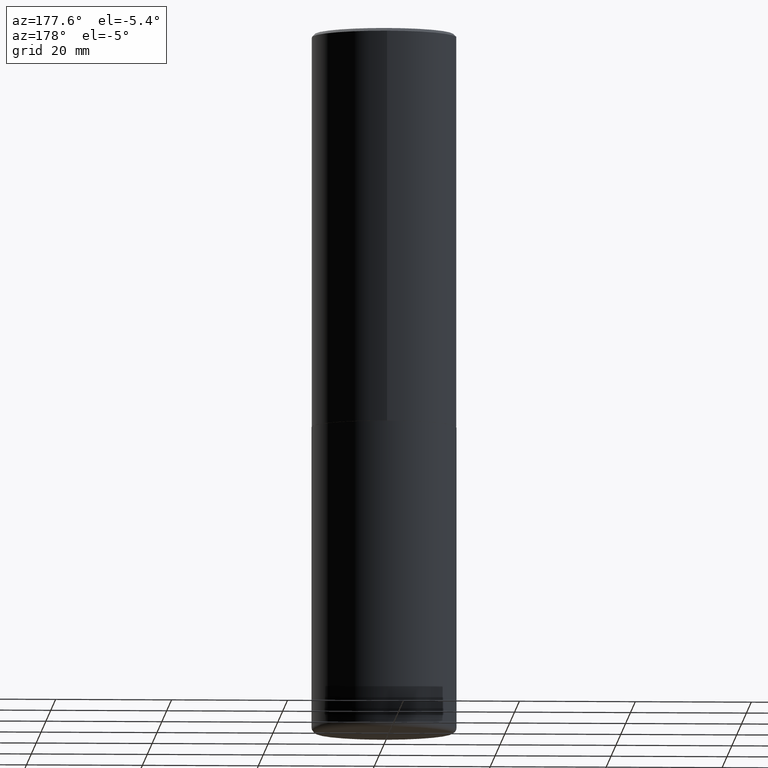
[diagram: clean part render]
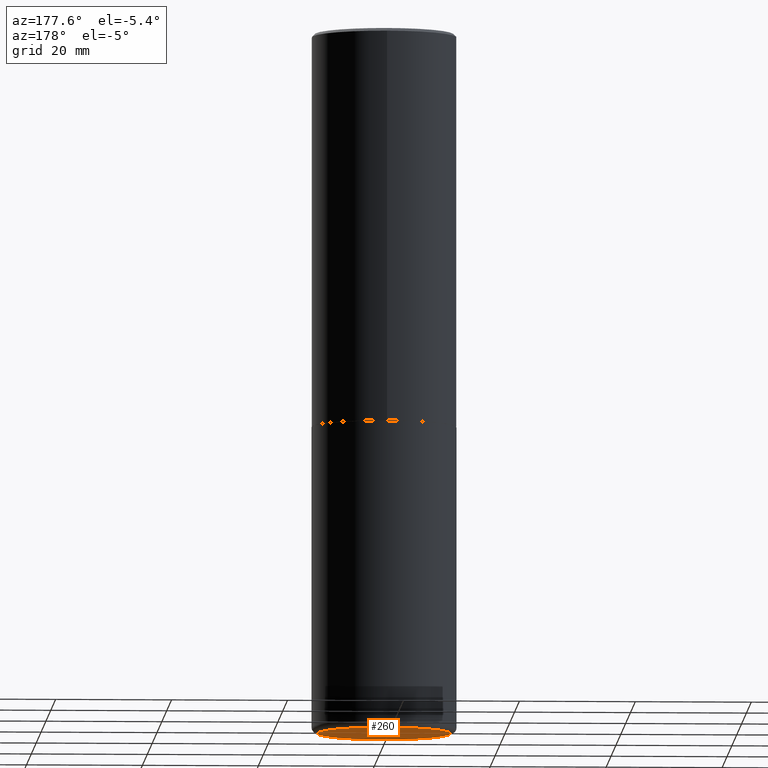
[diagram: same view with one face highlighted and labeled with its STEP entity id]
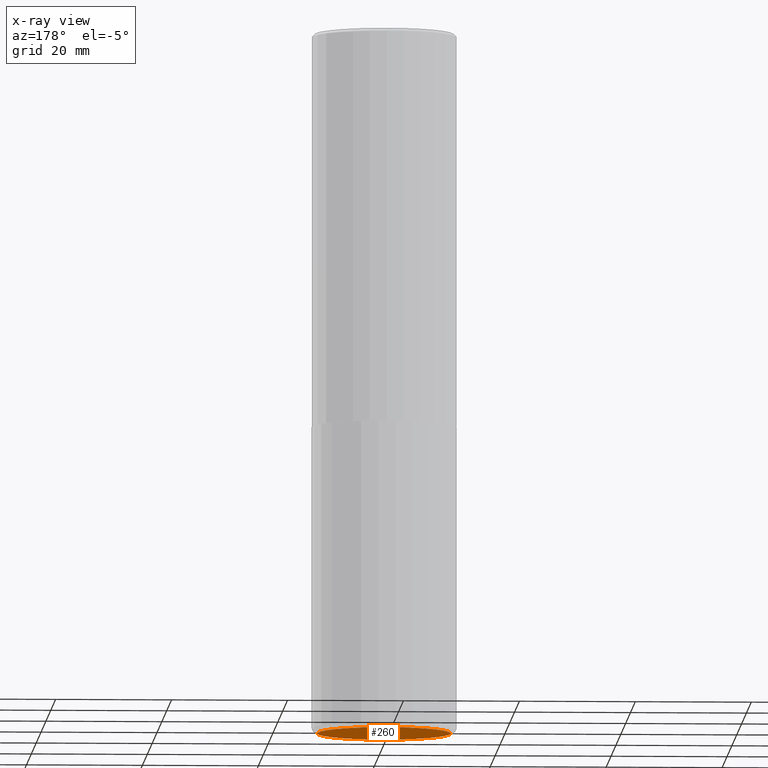
[diagram: x-ray of the same camera — body ghosted, the highlighted face saturated]
A machine part, auxiliary view. The second image highlights one B-rep face of the part: STEP entity #260.
The next image is the same camera in x-ray: the body ghosted, the highlighted face saturated — about 0% of this face is hidden behind the body in this view.
In plain terms, the highlighted planar face has unit normal (0, -0, -1).
Its self-contained STEP definition (entity closure, byte-faithful):
#28 = AXIS2_PLACEMENT_3D ( 'NONE', #40, #278, #300 ) ;
#40 = CARTESIAN_POINT ( 'NONE',  ( 1.164972429890475522E-28, -1.663271880198097847E-14, -4.763799999999999812 ) ) ;
#53 = CARTESIAN_POINT ( 'NONE',  ( 7.635318159677945866E-29, -2.238157687916168233E-14, -4.763799999999999812 ) ) ;
#54 = AXIS2_PLACEMENT_3D ( 'NONE', #53, #185, #317 ) ;
#72 = CARTESIAN_POINT ( 'NONE',  ( 0.4527499999999999858, -1.979425515430343739E-14, -4.763799999999999812 ) ) ;
#82 = FACE_OUTER_BOUND ( 'NONE', #230, .T. ) ;
#84 = CIRCLE ( 'NONE', #315, 0.4527499999999999858 ) ;
#92 = ORIENTED_EDGE ( 'NONE', *, *, #225, .F. ) ;
#100 = EDGE_CURVE ( 'NONE', #262, #295, #158, .T. ) ;
#136 = DIRECTION ( 'NONE',  ( 1.000000000000000000, -6.982962677686269077E-15, 0.000000000000000000 ) ) ;
#158 = CIRCLE ( 'NONE', #28, 0.4527499999999999858 ) ;
#185 = DIRECTION ( 'NONE',  ( 2.438088387897960049E-29, -3.491481338843145188E-15, -1.000000000000000000 ) ) ;
#186 = ORIENTED_EDGE ( 'NONE', *, *, #100, .F. ) ;
#225 = EDGE_CURVE ( 'NONE', #295, #262, #84, .T. ) ;
#230 = EDGE_LOOP ( 'NONE', ( #186, #92 ) ) ;
#260 = ADVANCED_FACE ( 'NONE', ( #82 ), #346, .T. ) ;
#262 = VERTEX_POINT ( 'NONE', #72 ) ;
#278 = DIRECTION ( 'NONE',  ( -2.445468806185136597E-29, 3.491481338843145583E-15, 1.000000000000000000 ) ) ;
#295 = VERTEX_POINT ( 'NONE', #338 ) ;
#300 = DIRECTION ( 'NONE',  ( 1.000000000000000000, -6.982962677686269077E-15, 0.000000000000000000 ) ) ;
#306 = DIRECTION ( 'NONE',  ( -2.445468806185136597E-29, 3.491481338843145583E-15, 1.000000000000000000 ) ) ;
#315 = AXIS2_PLACEMENT_3D ( 'NONE', #390, #306, #136 ) ;
#317 = DIRECTION ( 'NONE',  ( -1.000000000000000000, 6.982962677686265922E-15, -4.876176775795935793E-29 ) ) ;
#338 = CARTESIAN_POINT ( 'NONE',  ( -0.4527499999999999858, -1.320697746450717054E-14, -4.763799999999999812 ) ) ;
#346 = PLANE ( 'NONE',  #54 ) ;
#390 = CARTESIAN_POINT ( 'NONE',  ( 1.164972429890475522E-28, -1.663271880198097847E-14, -4.763799999999999812 ) ) ;